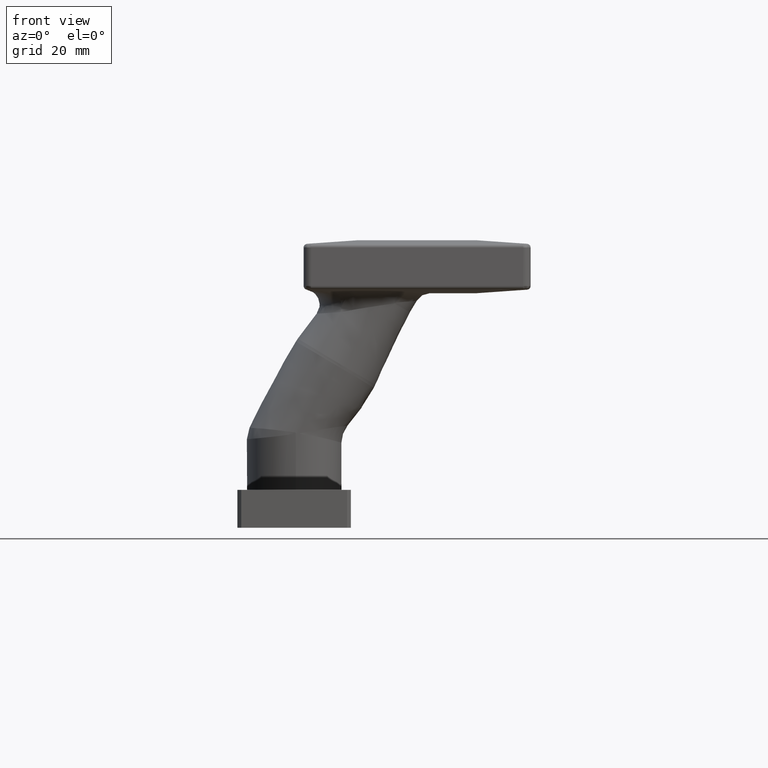
[diagram: clean part render]
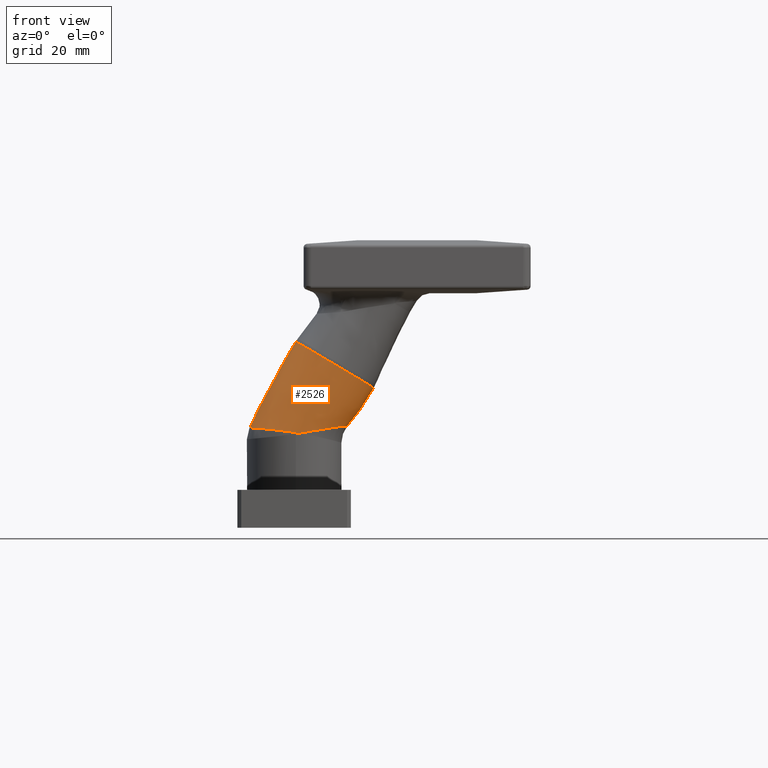
[diagram: same view with one face highlighted and labeled with its STEP entity id]
A machine part, front view. The second image highlights one B-rep face of the part: STEP entity #2526.
In plain terms, the highlighted face is a freeform B-spline surface patch.
Its self-contained STEP definition (entity closure, byte-faithful):
#180 = EDGE_CURVE ( 'NONE', #11349, #11349, #11354, .T. ) ;
#272 = CARTESIAN_POINT ( 'NONE',  ( -4.861647588908223128, -9.215768028173247473, 27.39458938647369379 ) ) ;
#313 = ORIENTED_EDGE ( 'NONE', *, *, #8218, .T. ) ;
#328 = CARTESIAN_POINT ( 'NONE',  ( 13.75269116321221397, 3.810970771245210553, 17.22611016918796878 ) ) ;
#373 = CARTESIAN_POINT ( 'NONE',  ( 8.572130360346401190, 13.23850676468123133, 24.14628376063532400 ) ) ;
#411 = CARTESIAN_POINT ( 'NONE',  ( 17.62565339814944920, 2.189836850330570517, 21.19337489879431047 ) ) ;
#423 = CARTESIAN_POINT ( 'NONE',  ( 21.30566923620517272, 0.1577045493643368379, 27.37173154725318014 ) ) ;
#461 = CARTESIAN_POINT ( 'NONE',  ( 20.97584422457134679, -3.055197323288384670, 27.56756514791076640 ) ) ;
#531 = CARTESIAN_POINT ( 'NONE',  ( 18.00574736911522677, 8.914883899047453042, 26.52104832478807239 ) ) ;
#558 = CARTESIAN_POINT ( 'NONE',  ( 0.8911359943185943600, 12.47017638708890708, 14.99999999999999822 ) ) ;
#654 = CARTESIAN_POINT ( 'NONE',  ( 18.02889343541739109, -8.554715425323612621, 28.86721385142937635 ) ) ;
#741 = CARTESIAN_POINT ( 'NONE',  ( 21.06086871645836212, -0.4890463641860524624, 26.98489491726817491 ) ) ;
#783 = FACE_OUTER_BOUND ( 'NONE', #2072, .T. ) ;
#787 = CARTESIAN_POINT ( 'NONE',  ( 17.27254015380343333, -9.343574820812253989, 29.32209938080705314 ) ) ;
#792 = CARTESIAN_POINT ( 'NONE',  ( 14.11385084242333399, 0.5870988515681928588, 16.94240429544219495 ) ) ;
#809 = CARTESIAN_POINT ( 'NONE',  ( 7.192077510165161058, 11.28740946938663825, 35.26807075544434156 ) ) ;
#822 = CARTESIAN_POINT ( 'NONE',  ( -7.760055948535018899, -9.326501240571504425, 16.15065546961905696 ) ) ;
#841 = CARTESIAN_POINT ( 'NONE',  ( 4.688649872959973486, -9.722009089196474108, 36.75883269949446941 ) ) ;
#844 = CARTESIAN_POINT ( 'NONE',  ( 10.55929444642474024, 8.239462505077968402, 16.51372794188327475 ) ) ;
#855 = CARTESIAN_POINT ( 'NONE',  ( 5.385777749702908679, 10.26202726963524547, 36.35730146854365330 ) ) ;
#859 = EDGE_CURVE ( 'NONE', #7682, #11216, #12438, .T. ) ;
#866 = CARTESIAN_POINT ( 'NONE',  ( -7.001269544327291428, 9.904077931762760301, 16.12631591500801065 ) ) ;
#885 = CARTESIAN_POINT ( 'NONE',  ( 5.835370468600914684, -10.57067010496673021, 36.06886251809776667 ) ) ;
#889 = CARTESIAN_POINT ( 'NONE',  ( 12.58683200767639754, 5.665439925809026889, 16.77219149834147061 ) ) ;
#902 = CARTESIAN_POINT ( 'NONE',  ( 0.7133045359136335195, 2.816602971472510930, 39.06089102913785638 ) ) ;
#913 = CARTESIAN_POINT ( 'NONE',  ( -9.265246657869072422, 7.611109359318549927, 16.29800102813766216 ) ) ;
#933 = CARTESIAN_POINT ( 'NONE',  ( 11.57182120046621243, -7.014899514578111450, 16.66410058575990405 ) ) ;
#948 = CARTESIAN_POINT ( 'NONE',  ( 1.366642911044659403, 5.043787997094652198, 38.68367878508799862 ) ) ;
#984 = CARTESIAN_POINT ( 'NONE',  ( 1.425388852639432269, -12.41969692558407523, 15.00000000000000000 ) ) ;
#1008 = CARTESIAN_POINT ( 'NONE',  ( -3.667265365845369107, -11.83154933609809234, 15.71180069125423984 ) ) ;
#1019 = B_SPLINE_CURVE_WITH_KNOTS ( 'NONE', 3,
 ( #4980, #9185, #8995, #6884 ),
 .UNSPECIFIED., .F., .F.,
 ( 4, 4 ),
 ( 0.000000000000000000, 1.000000000000000000 ),
 .UNSPECIFIED. ) ;
#1362 = CARTESIAN_POINT ( 'NONE',  ( 0.5849009312045936326, -6.448878678308452628, 39.67468772834727275 ) ) ;
#1389 = CARTESIAN_POINT ( 'NONE',  ( 0.7742499936232908331, -12.48253463515511541, 15.00000000000000178 ) ) ;
#1404 = CARTESIAN_POINT ( 'NONE',  ( 11.44051465776146514, 5.036330446420786089, 15.00000000000000000 ) ) ;
#1449 = CARTESIAN_POINT ( 'NONE',  ( -11.79395460171322618, 2.316301207380824234, 19.86778255245285507 ) ) ;
#1503 = CARTESIAN_POINT ( 'NONE',  ( 13.29835833785622512, -11.00929554621865414, 22.06567846908929909 ) ) ;
#1516 = CARTESIAN_POINT ( 'NONE',  ( 20.08551445353427312, 1.638264176143124695, 25.53057922623512965 ) ) ;
#1548 = CARTESIAN_POINT ( 'NONE',  ( -3.213294122388510754, 10.73064414391082444, 27.49751097260446286 ) ) ;
#1563 = CARTESIAN_POINT ( 'NONE',  ( 17.49522959009413725, 2.858973152982252408, 21.25079076330078820 ) ) ;
#1598 = CARTESIAN_POINT ( 'NONE',  ( 17.03340872753141966, 4.463611149502693998, 21.43178780182396892 ) ) ;
#1632 = CARTESIAN_POINT ( 'NONE',  ( 0.7165784863033796137, 12.48163866957477630, 14.99999999999999645 ) ) ;
#1686 = CARTESIAN_POINT ( 'NONE',  ( 21.01095819843662937, -1.274038318740390308, 27.01224782117997947 ) ) ;
#1726 = B_SPLINE_CURVE_WITH_KNOTS ( 'NONE', 3,
 ( #4051, #2023, #8392, #5245, #3149, #11408, #10532, #12662, #13654, #9489, #13607, #7285, #11500, #13551, #8303, #8430, #866, #6324, #3102, #11583, #913, #10497, #8353, #6227, #5115, #3063, #12488, #9314, #6181, #5210, #12575, #4187, #1923, #10359, #9359, #4231, #2061, #822, #11536, #5287, #11456, #6366, #7192, #1008, #4092, #3017, #12625, #2966, #4139, #13684, #10404, #5168, #7374, #7554 ),
 .UNSPECIFIED., .F., .F.,
 ( 4, 2, 2, 2, 2, 2, 2, 2, 2, 2, 2, 2, 2, 2, 2, 2, 2, 2, 2, 2, 2, 2, 2, 2, 2, 2, 4 ),
 ( 0.000000000000000000, 0.0003059239240236110357, 0.0006118478480472220715, 0.001223695696094443276, 0.002447391392188887418, 0.003671087088283330260, 0.004894782784377773102, 0.007342174176566656184, 0.008565869872661099893, 0.009789565568755542735, 0.01223695696094442495, 0.01468434835313330543, 0.01713173974532218938, 0.01957913113751107159, 0.02202652252969995381, 0.02447391392188883949, 0.02692130531407772170, 0.02814500101017216108, 0.02936869670626660392, 0.03181608809845547919, 0.03303978379454991510, 0.03426347949064435794, 0.03671087088283322974, 0.03793456657892766565, 0.03854641442697488707, 0.03885233835099850125, 0.03915826227502210849 ),
 .UNSPECIFIED. ) ;
#1733 = CARTESIAN_POINT ( 'NONE',  ( 16.45691399956350409, -10.03643122098850782, 29.80319354954185940 ) ) ;
#1832 = CARTESIAN_POINT ( 'NONE',  ( 4.558500466104606019, 9.579472488227125382, 36.85349937302011369 ) ) ;
#1848 = VERTEX_POINT ( 'NONE', #13191 ) ;
#1862 = CARTESIAN_POINT ( 'NONE',  ( 20.65710217272049576, 3.400538394858464653, 27.20349177090244908 ) ) ;
#1865 = CARTESIAN_POINT ( 'NONE',  ( 5.358471900771933250, -11.47201462073465095, 15.70663483745219224 ) ) ;
#1876 = CARTESIAN_POINT ( 'NONE',  ( 12.85729564123674251, 11.76535233699378580, 31.91444924710242503 ) ) ;
#1902 = CARTESIAN_POINT ( 'NONE',  ( 7.697122461854775999, -11.46774175473777113, 34.96240227996625549 ) ) ;
#1905 = CARTESIAN_POINT ( 'NONE',  ( 3.022726152285090784, -12.16922487241585493, 15.31651084561261023 ) ) ;
#1914 = CARTESIAN_POINT ( 'NONE',  ( 1.000042194404276330, 3.949773504242831024, 38.89208498122581403 ) ) ;
#1923 = CARTESIAN_POINT ( 'NONE',  ( -10.24550959434349551, -6.157709071875216544, 16.34047140414060095 ) ) ;
#1948 = CARTESIAN_POINT ( 'NONE',  ( 12.30717977744754599, -6.029959888127936374, 16.76085405834727737 ) ) ;
#1964 = CARTESIAN_POINT ( 'NONE',  ( 2.426200150160930491, 7.067282244977698191, 38.09314658925206487 ) ) ;
#2011 = CARTESIAN_POINT ( 'NONE',  ( 16.29000846305358863, 10.14340301165544211, 29.87403481433514685 ) ) ;
#2023 = CARTESIAN_POINT ( 'NONE',  ( 0.3217164403740780942, 12.49282580579611235, 15.17776186502671543 ) ) ;
#2041 = CARTESIAN_POINT ( 'NONE',  ( 12.72789832680872202, -5.334347894442927007, 16.81136374722618143 ) ) ;
#2061 = CARTESIAN_POINT ( 'NONE',  ( -8.594335646057697176, -8.451263285410444581, 16.22143786786687158 ) ) ;
#2072 = EDGE_LOOP ( 'NONE', ( #11771 ) ) ;
#2405 = CARTESIAN_POINT ( 'NONE',  ( 13.11243725123533643, -3.723818737494336784, 15.00000000000000000 ) ) ;
#2457 = CARTESIAN_POINT ( 'NONE',  ( 20.18705934235146771, -0.3422450821606061178, 25.48849425743658159 ) ) ;
#2506 = CARTESIAN_POINT ( 'NONE',  ( 14.61977201540200255, -4.653069682173216037, 17.17037261431810791 ) ) ;
#2526 = ADVANCED_FACE ( 'NONE', ( #783, #4128 ), #12590, .T. ) ;
#2549 = CARTESIAN_POINT ( 'NONE',  ( -14.22014102607380615, 1.277861314443007990, 15.00000000000000000 ) ) ;
#2560 = CARTESIAN_POINT ( 'NONE',  ( 12.83826497349632945, 5.982135098357918679, 17.31180389782100093 ) ) ;
#2590 = CARTESIAN_POINT ( 'NONE',  ( 5.141061462732254839, -11.90303946203330376, 36.96946741275272785 ) ) ;
#2657 = CARTESIAN_POINT ( 'NONE',  ( 0.01502296227024976262, 13.66421575241133546, 15.00000000000000000 ) ) ;
#2693 = CARTESIAN_POINT ( 'NONE',  ( 0.5415832341735139499, 12.48884232441322517, 15.00000000000058265 ) ) ;
#2744 = CARTESIAN_POINT ( 'NONE',  ( 17.39331168122273397, 9.214959917960307223, 29.22441576977719890 ) ) ;
#2792 = CARTESIAN_POINT ( 'NONE',  ( 17.78280765292776877, -8.829242240460130731, 29.01636682707133019 ) ) ;
#2891 = CARTESIAN_POINT ( 'NONE',  ( 20.04733055255613650, 5.215809211980965365, 27.58885846883249471 ) ) ;
#2894 = CARTESIAN_POINT ( 'NONE',  ( 1.262970517230964207, 12.43793362243144074, 15.05907035263116711 ) ) ;
#2907 = CARTESIAN_POINT ( 'NONE',  ( 11.19627394706859747, 12.00051368694155585, 32.92140036091969080 ) ) ;
#2918 = VERTEX_POINT ( 'NONE', #5588 ) ;
#2934 = CARTESIAN_POINT ( 'NONE',  ( 12.72172884172835872, -11.79814440171863765, 32.00122203746039418 ) ) ;
#2938 = CARTESIAN_POINT ( 'NONE',  ( 2.424979838420118217, -12.28163832347742002, 15.21032751951582540 ) ) ;
#2966 = CARTESIAN_POINT ( 'NONE',  ( -0.7259197069209089026, -12.45878752191295646, 15.31150959122973809 ) ) ;
#2992 = CARTESIAN_POINT ( 'NONE',  ( 2.528870566857754909, -7.228748217037280988, 38.02797349074460698 ) ) ;
#2995 = CARTESIAN_POINT ( 'NONE',  ( 4.204991347687650816, -11.86579700815689264, 15.51705592700480985 ) ) ;
#3007 = CARTESIAN_POINT ( 'NONE',  ( 12.19933570521591193, 11.89714605565564476, 32.31436126553225563 ) ) ;
#3017 = CARTESIAN_POINT ( 'NONE',  ( -1.722942503314718987, -12.33464251176754445, 15.45299931105459734 ) ) ;
#3022 = CARTESIAN_POINT ( 'NONE',  ( 0.4628888708257798967, 12.49066065314260499, 15.11323861511340638 ) ) ;
#3036 = CARTESIAN_POINT ( 'NONE',  ( 13.60437422541829022, 3.414373441549006127, 16.88261556675736941 ) ) ;
#3051 = CARTESIAN_POINT ( 'NONE',  ( 0.6073897186154396666, -2.254615506074624243, 39.11817533846387818 ) ) ;
#3063 = CARTESIAN_POINT ( 'NONE',  ( -11.71264873976365628, 1.681398514680182199, 16.43347562760983038 ) ) ;
#3080 = CARTESIAN_POINT ( 'NONE',  ( 13.78079031616732664, -2.668784481497560979, 16.92229881294988658 ) ) ;
#3102 = CARTESIAN_POINT ( 'NONE',  ( -7.914506866328545165, 9.105401409285470038, 16.20366877459126087 ) ) ;
#3107 = CARTESIAN_POINT ( 'NONE',  ( 0.4235304700486768881, 12.49030518299969827, 15.17056411022498708 ) ) ;
#3149 = CARTESIAN_POINT ( 'NONE',  ( -0.08026832433964131708, 12.49028868937751646, 15.24445156593847628 ) ) ;
#3505 = CARTESIAN_POINT ( 'NONE',  ( 17.30607035245568426, -6.309135293302730041, 21.03830459812851217 ) ) ;
#3597 = CARTESIAN_POINT ( 'NONE',  ( 19.54770223309594712, -8.488429147853686629, 28.41552445534928140 ) ) ;
#3611 = CARTESIAN_POINT ( 'NONE',  ( 19.75505151178758112, 8.197081354544389242, 28.29241082112611849 ) ) ;
#3641 = CARTESIAN_POINT ( 'NONE',  ( 14.16247968890031927, 2.185049141711799869, 17.19030899223330877 ) ) ;
#3656 = CARTESIAN_POINT ( 'NONE',  ( 12.33408136193803806, 6.828792217095751127, 17.36044873953291656 ) ) ;
#3695 = CARTESIAN_POINT ( 'NONE',  ( 17.72827186766386021, 1.521338932216218076, 21.14405680603314153 ) ) ;
#3710 = CARTESIAN_POINT ( 'NONE',  ( 11.44051465776146514, 5.036330446420786089, 15.00000000000000000 ) ) ;
#3758 = CARTESIAN_POINT ( 'NONE',  ( 20.16045823361689671, 0.6494646237386794141, 25.49769324333970388 ) ) ;
#3836 = CARTESIAN_POINT ( 'NONE',  ( 18.81553224091939924, 7.550167745414809062, 28.36570380467029295 ) ) ;
#3887 = CARTESIAN_POINT ( 'NONE',  ( 16.29000846305358863, 10.14340301165544211, 29.87403481433514685 ) ) ;
#3923 = CARTESIAN_POINT ( 'NONE',  ( 19.89865954991608987, 5.566316234916983241, 27.68368327888605762 ) ) ;
#3974 = CARTESIAN_POINT ( 'NONE',  ( 19.39043987479820075, 6.588061096227268543, 28.00585863036879886 ) ) ;
#3979 = CARTESIAN_POINT ( 'NONE',  ( 1.065145046017432540, 12.45480823540932214, 15.00000000000000000 ) ) ;
#4022 = CARTESIAN_POINT ( 'NONE',  ( 16.17189233049945329, -10.24658574646730891, 29.96973805473648866 ) ) ;
#4026 = CARTESIAN_POINT ( 'NONE',  ( 9.333030531088065018, 9.309940005341506009, 16.34489038564719365 ) ) ;
#4051 = CARTESIAN_POINT ( 'NONE',  ( 0.4235304700486768881, 12.49030518299969827, 15.17056411022498708 ) ) ;
#4068 = CARTESIAN_POINT ( 'NONE',  ( 4.157552129895581317, -9.237326029025773266, 37.07777104532334533 ) ) ;
#4071 = CARTESIAN_POINT ( 'NONE',  ( 4.594221785667067515, -11.74397464945888991, 15.58189356912756907 ) ) ;
#4092 = CARTESIAN_POINT ( 'NONE',  ( -2.908228696639014732, -12.08115950287648488, 15.61572512018270942 ) ) ;
#4111 = CARTESIAN_POINT ( 'NONE',  ( 8.664498501119735963, 9.796750630904490720, 16.24974533732154924 ) ) ;
#4125 = CARTESIAN_POINT ( 'NONE',  ( 0.5509124376336413942, -1.868561880454528978, 39.15434667308368688 ) ) ;
#4128 = FACE_OUTER_BOUND ( 'NONE', #8423, .T. ) ;
#4139 = CARTESIAN_POINT ( 'NONE',  ( -0.5255856473605849954, -12.47364568115339445, 15.28334524799793925 ) ) ;
#4164 = CARTESIAN_POINT ( 'NONE',  ( 13.97640485124976450, 1.822518151901720174, 16.92406808116584571 ) ) ;
#4187 = CARTESIAN_POINT ( 'NONE',  ( -10.61411484039383168, -5.440215046181053893, 16.36090925713664745 ) ) ;
#4231 = CARTESIAN_POINT ( 'NONE',  ( -8.860878301296075676, -8.143216470857442602, 16.24278865663269755 ) ) ;
#4579 = CARTESIAN_POINT ( 'NONE',  ( -1.277861314443011542, -14.22014102607380792, 15.00000000000000000 ) ) ;
#4620 = CARTESIAN_POINT ( 'NONE',  ( 14.75245723495437211, -11.75016148225459034, 28.19412826856855858 ) ) ;
#4669 = CARTESIAN_POINT ( 'NONE',  ( -1.076379068130093764, -7.292821942621340092, 35.92907127236919251 ) ) ;
#4683 = CARTESIAN_POINT ( 'NONE',  ( 21.30155450817410667, -0.1734098784748269728, 27.37417466702162372 ) ) ;
#4718 = CARTESIAN_POINT ( 'NONE',  ( 17.56044149412179678, 2.524405001656411685, 21.22208283104755111 ) ) ;
#4729 = CARTESIAN_POINT ( 'NONE',  ( 8.952384199136087517, 11.59773801365081347, 17.69034776612422988 ) ) ;
#4755 = CARTESIAN_POINT ( 'NONE',  ( 1.065145046017432540, 12.45480823540932214, 15.00000000000000000 ) ) ;
#4772 = CARTESIAN_POINT ( 'NONE',  ( 10.48428740744931531, 6.834208714589097511, 15.00000000000000000 ) ) ;
#4898 = CARTESIAN_POINT ( 'NONE',  ( 20.79405691108901877, -2.831724569634490596, 27.13422283271177093 ) ) ;
#4939 = CARTESIAN_POINT ( 'NONE',  ( 15.27642561552774048, -10.81443275623829336, 30.49159089622647301 ) ) ;
#4980 = CARTESIAN_POINT ( 'NONE',  ( 0.2849833287464162423, -12.49264548109530892, 15.21350726076668636 ) ) ;
#4997 = CARTESIAN_POINT ( 'NONE',  ( 21.02306599511932106, 1.074572950062981258, 26.99577534333411677 ) ) ;
#5052 = CARTESIAN_POINT ( 'NONE',  ( 2.069741725346645467, 12.34144384523552951, 15.21175991173509701 ) ) ;
#5066 = CARTESIAN_POINT ( 'NONE',  ( 2.846204456068282873, 7.685954237354964746, 37.85515697786182443 ) ) ;
#5091 = CARTESIAN_POINT ( 'NONE',  ( 6.435100655757173271, -10.92258006611436905, 35.70802051798180798 ) ) ;
#5094 = CARTESIAN_POINT ( 'NONE',  ( 4.255520867315712330, 11.88116428087677967, 15.57355949626305858 ) ) ;
#5115 = CARTESIAN_POINT ( 'NONE',  ( -11.39317637449729226, 3.263289944268101817, 16.41378854170359602 ) ) ;
#5137 = CARTESIAN_POINT ( 'NONE',  ( 1.953879435330086567, -6.259796618726054973, 38.35267828442997740 ) ) ;
#5142 = CARTESIAN_POINT ( 'NONE',  ( 10.75863656144082725, -7.940229365238896442, 16.55078796437945599 ) ) ;
#5155 = CARTESIAN_POINT ( 'NONE',  ( 0.4711458601086741527, -1.086506212349811928, 39.20855210557056836 ) ) ;
#5168 = CARTESIAN_POINT ( 'NONE',  ( 0.07998225966711307311, -12.49385583205365258, 15.21647554841455552 ) ) ;
#5186 = CARTESIAN_POINT ( 'NONE',  ( 5.031357331127366272, 11.63180990683129679, 15.69769645593194873 ) ) ;
#5199 = CARTESIAN_POINT ( 'NONE',  ( 9.162429969906019878, 11.88355806244883439, 34.10749423160948623 ) ) ;
#5210 = CARTESIAN_POINT ( 'NONE',  ( -11.43733599240894883, -3.150338746824532521, 16.41653324255009849 ) ) ;
#5216 = CARTESIAN_POINT ( 'NONE',  ( 0.5022491565705831107, 12.49036463450502588, 15.05639001751628747 ) ) ;
#5228 = CARTESIAN_POINT ( 'NONE',  ( 2.673008547499436283, 12.24480237251113124, 15.31425382601022278 ) ) ;
#5245 = CARTESIAN_POINT ( 'NONE',  ( 0.01979391532951144811, 12.49243803186328172, 15.22681577750779880 ) ) ;
#5287 = CARTESIAN_POINT ( 'NONE',  ( -6.166064883189688040, -10.54960061911836178, 15.99416041070192485 ) ) ;
#5588 = CARTESIAN_POINT ( 'NONE',  ( 1.425388852639432269, -12.41969692558407523, 15.00000000000000000 ) ) ;
#5611 = VERTEX_POINT ( 'NONE', #6726 ) ;
#5640 = CARTESIAN_POINT ( 'NONE',  ( 3.090739208900059598, 13.51120142303734895, 18.28748632571762300 ) ) ;
#5694 = CARTESIAN_POINT ( 'NONE',  ( 11.82921238707280942, 4.083857506220506473, 15.00000000000000000 ) ) ;
#5734 = CARTESIAN_POINT ( 'NONE',  ( 17.80123638578017164, 0.5242892728067223285, 21.09377061425920985 ) ) ;
#5748 = CARTESIAN_POINT ( 'NONE',  ( 19.93003729075663344, 2.597159428233290601, 25.60302178686560737 ) ) ;
#5779 = CARTESIAN_POINT ( 'NONE',  ( 15.68884729114127730, 11.92218096499315294, 30.70671957713486577 ) ) ;
#5834 = CARTESIAN_POINT ( 'NONE',  ( 13.64022508829914315, 4.133458770120263637, 17.23642877914935312 ) ) ;
#5848 = CARTESIAN_POINT ( 'NONE',  ( 9.907478460048325886, 7.647205480839566860, 15.00000000000000000 ) ) ;
#5924 = CARTESIAN_POINT ( 'NONE',  ( 19.57005914332719598, 6.253025264686049134, 27.89229717979494794 ) ) ;
#5970 = CARTESIAN_POINT ( 'NONE',  ( 18.72260455974503657, -7.698321935281985162, 28.44183416858051316 ) ) ;
#6003 = CARTESIAN_POINT ( 'NONE',  ( 0.5415832341735139499, 12.48884232441322517, 15.00000000000058265 ) ) ;
#6008 = B_SPLINE_CURVE_WITH_KNOTS ( 'NONE', 3,
 ( #984, #9376, #8281, #11476, #2938, #1905, #10379, #2995, #4071, #1865, #7213, #10339, #11432, #12596, #7168, #12411, #5142, #12506, #933, #1948, #2041, #6206, #12464, #6293, #3080, #8406, #12551, #792, #13667, #4164, #8238, #3036, #13578, #889, #10431, #9292, #844, #4026, #4111, #7355, #11382, #5186, #5094, #11514, #5228, #5052, #10296, #6246, #6157, #2894, #10472, #3979 ),
 .UNSPECIFIED., .F., .F.,
 ( 4, 2, 2, 2, 2, 2, 2, 2, 2, 2, 2, 2, 2, 2, 2, 2, 2, 2, 2, 2, 2, 2, 2, 2, 2, 4 ),
 ( -5.999999998903975888E-08, 0.0006173217718151980098, 0.001234703543630384388, 0.002469467087260755842, 0.003704230630891127730, 0.004938994174521499185, 0.007408521261782243829, 0.009878048349042991075, 0.01111281189267336253, 0.01234757543630373572, 0.01481710252356448557, 0.01605186606719485876, 0.01728662961082523195, 0.01975615669808598179, 0.02099092024171635498, 0.02222568378534672817, 0.02469521087260747455, 0.02716473795986822440, 0.02963426504712897425, 0.03210379213438972062, 0.03457331922165046700, 0.03704284630891122032, 0.03827760985254159004, 0.03889499162435677837, 0.03920368251026436907, 0.03951237339617195976 ),
 .UNSPECIFIED. ) ;
#6018 = CARTESIAN_POINT ( 'NONE',  ( 18.38103195454745986, 8.141959093548997828, 28.63276862054548744 ) ) ;
#6066 = CARTESIAN_POINT ( 'NONE',  ( 17.65087315105107990, 8.955381115330649067, 29.07121430041988219 ) ) ;
#6104 = CARTESIAN_POINT ( 'NONE',  ( 20.13914470401036283, -5.045811439072897642, 27.54063032428567581 ) ) ;
#6120 = CARTESIAN_POINT ( 'NONE',  ( 0.6398647108814388140, 2.429095659917021699, 39.10621104440562590 ) ) ;
#6139 = VERTEX_POINT ( 'NONE', #9616 ) ;
#6153 = CARTESIAN_POINT ( 'NONE',  ( 9.696037783233157015, -11.96354751363279334, 33.80479555227176292 ) ) ;
#6157 = CARTESIAN_POINT ( 'NONE',  ( 1.464088159285413360, 12.41758173332320325, 15.10216828393019739 ) ) ;
#6171 = CARTESIAN_POINT ( 'NONE',  ( 7.843536950723685841, 11.53944027035956665, 34.88010176793494566 ) ) ;
#6181 = CARTESIAN_POINT ( 'NONE',  ( -11.73443575203364198, -1.565196610914409092, 16.43794129320785657 ) ) ;
#6203 = CARTESIAN_POINT ( 'NONE',  ( 1.615667961207454262, -5.578147558916029425, 38.54167561691417632 ) ) ;
#6206 = CARTESIAN_POINT ( 'NONE',  ( 13.24678063924588933, -4.228305172649357679, 16.86900749459755033 ) ) ;
#6217 = CARTESIAN_POINT ( 'NONE',  ( 5.966556992949856308, 10.64889279731794502, 36.00509270439367526 ) ) ;
#6227 = CARTESIAN_POINT ( 'NONE',  ( -11.15406536593488340, 4.048229165682733388, 16.40055894050248142 ) ) ;
#6246 = CARTESIAN_POINT ( 'NONE',  ( 1.564998025864035469, 12.40638662502128575, 15.12132352836738036 ) ) ;
#6293 = CARTESIAN_POINT ( 'NONE',  ( 13.66853215020173096, -3.068108269586593551, 16.91190764902266963 ) ) ;
#6324 = CARTESIAN_POINT ( 'NONE',  ( -7.619644024435984875, 9.380555941462651148, 16.18002837034177332 ) ) ;
#6366 = CARTESIAN_POINT ( 'NONE',  ( -5.120866610862981005, -11.16640378035266323, 15.88133526386623018 ) ) ;
#6716 = CARTESIAN_POINT ( 'NONE',  ( -11.35052220728457861, 8.660888289449129473, 15.00000000000000000 ) ) ;
#6726 = CARTESIAN_POINT ( 'NONE',  ( 0.4235304700486768881, 12.49030518299969827, 15.17056411022498708 ) ) ;
#6759 = CARTESIAN_POINT ( 'NONE',  ( 21.15286242819891172, -2.120646103445471109, 27.46246058950690028 ) ) ;
#6806 = CARTESIAN_POINT ( 'NONE',  ( 4.034427452716456308, -12.39537017591437085, 33.44576066983629659 ) ) ;
#6821 = CARTESIAN_POINT ( 'NONE',  ( 20.14342728621055301, 0.9816324896828112490, 25.50475166743720834 ) ) ;
#6830 = CARTESIAN_POINT ( 'NONE',  ( 16.29000846305358863, 10.14340301165544211, 29.87403481433514685 ) ) ;
#6848 = CARTESIAN_POINT ( 'NONE',  ( 18.86397047243561076, -7.823711431694698071, 26.16536038277406817 ) ) ;
#6863 = CARTESIAN_POINT ( 'NONE',  ( 11.00055369948115036, 5.966236345839974753, 15.00000000000000000 ) ) ;
#6884 = CARTESIAN_POINT ( 'NONE',  ( 0.4492440536689440989, -12.49296174146934035, 15.00000000000000000 ) ) ;
#6902 = CARTESIAN_POINT ( 'NONE',  ( 14.01991361010034076, 10.55041516224813236, 22.48495404871142611 ) ) ;
#6907 = EDGE_CURVE ( 'NONE', #5611, #6139, #1726, .T. ) ;
#7163 = CARTESIAN_POINT ( 'NONE',  ( 19.12913647243598092, -7.081961720688926931, 28.18550656784178443 ) ) ;
#7168 = CARTESIAN_POINT ( 'NONE',  ( 9.575725020345371874, -9.053714802557490060, 16.37590421248624040 ) ) ;
#7182 = CARTESIAN_POINT ( 'NONE',  ( 4.289728933531511856, 9.334099494337053216, 37.01373641339021248 ) ) ;
#7192 = CARTESIAN_POINT ( 'NONE',  ( -4.762898562022040316, -11.34665348095010273, 15.84080001450313624 ) ) ;
#7210 = CARTESIAN_POINT ( 'NONE',  ( 0.8267838019439711639, -3.398137438702033997, 38.98488138573925710 ) ) ;
#7213 = CARTESIAN_POINT ( 'NONE',  ( 5.734520456768451346, -11.32162586769981338, 15.76652238308416010 ) ) ;
#7225 = CARTESIAN_POINT ( 'NONE',  ( 1.673801816226283767, 5.742391440808412462, 38.51376223547847388 ) ) ;
#7252 = CARTESIAN_POINT ( 'NONE',  ( 8.353087739223926889, -11.67742412449628020, 34.58002440260261778 ) ) ;
#7285 = CARTESIAN_POINT ( 'NONE',  ( -3.495115371532646620, 11.84722068806643769, 15.76366524469951003 ) ) ;
#7355 = CARTESIAN_POINT ( 'NONE',  ( 7.271784367385158099, 10.64586718735563409, 16.04451008487158248 ) ) ;
#7374 = CARTESIAN_POINT ( 'NONE',  ( 0.1816819516646135946, -12.49406969296634706, 15.20909250457318329 ) ) ;
#7554 = CARTESIAN_POINT ( 'NONE',  ( 0.2849833287464162423, -12.49264548109530892, 15.21350726076668636 ) ) ;
#7682 = VERTEX_POINT ( 'NONE', #13437 ) ;
#7728 = CARTESIAN_POINT ( 'NONE',  ( 15.39063267787042477, -12.07531298867185932, 30.88378450376443496 ) ) ;
#7763 = EDGE_CURVE ( 'NONE', #2918, #7682, #6008, .T. ) ;
#7770 = CARTESIAN_POINT ( 'NONE',  ( 21.29743978014304062, -0.5045243063139908113, 27.37661778679006730 ) ) ;
#7819 = CARTESIAN_POINT ( 'NONE',  ( 5.439276076003107363, 12.09445449163169783, 36.79240248612315867 ) ) ;
#7869 = CARTESIAN_POINT ( 'NONE',  ( 0.7494900524471926895, 6.795698435258110237, 39.57696293760947981 ) ) ;
#7913 = CARTESIAN_POINT ( 'NONE',  ( 13.94953555706932846, 3.162800933747472065, 17.20838356461216989 ) ) ;
#7976 = CARTESIAN_POINT ( 'NONE',  ( 21.04758870764313627, 2.718120690341253809, 27.52496686108688451 ) ) ;
#8038 = CARTESIAN_POINT ( 'NONE',  ( 1.425388852639432269, -12.41969692558407523, 15.00000000000000000 ) ) ;
#8067 = CARTESIAN_POINT ( 'NONE',  ( 0.5415832341735139499, 12.48884232441322517, 15.00000000000058265 ) ) ;
#8218 = EDGE_CURVE ( 'NONE', #11216, #5611, #10049, .T. ) ;
#8236 = CARTESIAN_POINT ( 'NONE',  ( 15.58249343616939342, -10.63517213964419206, 30.31343401432068418 ) ) ;
#8238 = CARTESIAN_POINT ( 'NONE',  ( 13.89967545461909992, 2.225317799978468347, 16.91518065619742117 ) ) ;
#8248 = CARTESIAN_POINT ( 'NONE',  ( 0.4270022596855164720, 0.4884748493799345725, 39.24730657071096118 ) ) ;
#8276 = CARTESIAN_POINT ( 'NONE',  ( 3.183265522785511337, -8.133617225800399808, 37.65107053382519808 ) ) ;
#8281 = CARTESIAN_POINT ( 'NONE',  ( 1.824783066973707957, -12.37416648467734070, 15.09636115862813099 ) ) ;
#8292 = CARTESIAN_POINT ( 'NONE',  ( 2.226990676466550578, 6.743198362290249825, 38.20487062751434593 ) ) ;
#8303 = CARTESIAN_POINT ( 'NONE',  ( -5.685368921362531580, 10.83881624360523155, 15.99812203606289174 ) ) ;
#8323 = CARTESIAN_POINT ( 'NONE',  ( 7.376357201446118950, -11.34474044196558573, 35.15084963504037319 ) ) ;
#8342 = CARTESIAN_POINT ( 'NONE',  ( 15.10561245928989393, 10.92303319903236591, 30.56790294036321853 ) ) ;
#8353 = CARTESIAN_POINT ( 'NONE',  ( -10.53760257139127354, 5.540147959983027448, 16.36814045233445825 ) ) ;
#8382 = CARTESIAN_POINT ( 'NONE',  ( 15.71297179106676367, 10.56817718909434589, 30.21242681560968890 ) ) ;
#8392 = CARTESIAN_POINT ( 'NONE',  ( 0.2208490460500046326, 12.49370134433407209, 15.19407391920187145 ) ) ;
#8406 = CARTESIAN_POINT ( 'NONE',  ( 14.04581577578408513, -1.467731245399816364, 16.94505107998925197 ) ) ;
#8423 = EDGE_LOOP ( 'NONE', ( #10743, #11934, #9806, #313, #9284, #12048 ) ) ;
#8430 = CARTESIAN_POINT ( 'NONE',  ( -6.678223861096949321, 10.15173639386868132, 16.09622847647165500 ) ) ;
#8772 = CARTESIAN_POINT ( 'NONE',  ( -7.295311605190376802, -10.58321874762134840, 19.45503815399738201 ) ) ;
#8865 = CARTESIAN_POINT ( 'NONE',  ( -8.660888289449131250, -11.35052220728457328, 15.00000000000000000 ) ) ;
#8886 = CARTESIAN_POINT ( 'NONE',  ( 0.4492440536689440989, -12.49296174146934035, 15.00000000000000000 ) ) ;
#8907 = CARTESIAN_POINT ( 'NONE',  ( 20.00584906534268370, -2.264623520813874968, 25.58466383197155025 ) ) ;
#8920 = CARTESIAN_POINT ( 'NONE',  ( 21.29070641680655740, 0.8140927661773704749, 27.38061572127110566 ) ) ;
#8953 = CARTESIAN_POINT ( 'NONE',  ( 14.29504217072903138, 1.205884797340878167, 17.18053324278316651 ) ) ;
#8966 = CARTESIAN_POINT ( 'NONE',  ( 17.33945406522144594, 3.516159591195427314, 21.31522425310902946 ) ) ;
#8995 = CARTESIAN_POINT ( 'NONE',  ( 0.3943916209000932205, -12.49460102191497768, 15.07073044837261655 ) ) ;
#9018 = CARTESIAN_POINT ( 'NONE',  ( 17.56044149412179678, 2.524405001656411685, 21.22208283104755111 ) ) ;
#9105 = CARTESIAN_POINT ( 'NONE',  ( 16.57852679904700466, 9.931015922935991114, 29.70483881369787227 ) ) ;
#9151 = CARTESIAN_POINT ( 'NONE',  ( 14.34260498753155844, -11.29569629626890759, 31.03705183340167295 ) ) ;
#9185 = CARTESIAN_POINT ( 'NONE',  ( 0.3396189332972787134, -12.49414918162547394, 15.14188624084624912 ) ) ;
#9252 = CARTESIAN_POINT ( 'NONE',  ( 3.778182480916945973, 8.819403221028386142, 37.31590728815153568 ) ) ;
#9284 = ORIENTED_EDGE ( 'NONE', *, *, #6907, .T. ) ;
#9288 = CARTESIAN_POINT ( 'NONE',  ( 13.70324462512671992, -11.54090857817388383, 31.41369592982567482 ) ) ;
#9292 = CARTESIAN_POINT ( 'NONE',  ( 11.12241724611068783, 7.653509762779752812, 16.58828497880322317 ) ) ;
#9314 = CARTESIAN_POINT ( 'NONE',  ( -11.80808795760131957, -0.7498267519007382198, 16.44240538505239257 ) ) ;
#9332 = CARTESIAN_POINT ( 'NONE',  ( 2.136721015353629571, -6.589860543508348378, 38.25012350585659959 ) ) ;
#9345 = CARTESIAN_POINT ( 'NONE',  ( 11.86756241129824652, 11.94422330887643469, 32.51645011100144700 ) ) ;
#9359 = CARTESIAN_POINT ( 'NONE',  ( -9.361428916562545055, -7.504618297473508726, 16.28063794242219942 ) ) ;
#9376 = CARTESIAN_POINT ( 'NONE',  ( 1.622321443091113258, -12.39984107278958803, 15.05639082282311847 ) ) ;
#9489 = CARTESIAN_POINT ( 'NONE',  ( -2.341862987019151632, 12.19091101971337565, 15.61611793942875615 ) ) ;
#9616 = CARTESIAN_POINT ( 'NONE',  ( 0.2849833287464162423, -12.49264548109530892, 15.21350726076668636 ) ) ;
#9806 = ORIENTED_EDGE ( 'NONE', *, *, #859, .T. ) ;
#9837 = CARTESIAN_POINT ( 'NONE',  ( 1.512933855121319615, -13.51715816698906636, 25.41690568105843795 ) ) ;
#9919 = CARTESIAN_POINT ( 'NONE',  ( 2.800110784379187923, 11.67847162740349987, 33.95731944034236705 ) ) ;
#9963 = CARTESIAN_POINT ( 'NONE',  ( 11.57949597617708193, 4.720620858377596818, 15.00000000000000000 ) ) ;
#9978 = CARTESIAN_POINT ( 'NONE',  ( 21.20131066837118183, 1.778010430679151987, 27.43369444690461023 ) ) ;
#10008 = CARTESIAN_POINT ( 'NONE',  ( 12.33075960307549757, 2.142486572575333259, 15.00000000000000000 ) ) ;
#10049 = B_SPLINE_CURVE_WITH_KNOTS ( 'NONE', 3,
 ( #6003, #5216, #3022, #3107 ),
 .UNSPECIFIED., .F., .F.,
 ( 4, 4 ),
 ( 0.000000000000000000, 1.000000000000000000 ),
 .UNSPECIFIED. ) ;
#10070 = CARTESIAN_POINT ( 'NONE',  ( 16.65865443953156699, 5.370256103100462752, 21.56712510263882265 ) ) ;
#10194 = CARTESIAN_POINT ( 'NONE',  ( 11.72003627269785753, -11.96178481638922797, 32.60590096582016173 ) ) ;
#10241 = CARTESIAN_POINT ( 'NONE',  ( 16.85698310614310813, 9.702796230675552636, 29.54130908868558336 ) ) ;
#10296 = CARTESIAN_POINT ( 'NONE',  ( 1.867707469351572724, 12.36982382424580251, 15.17710515915933378 ) ) ;
#10339 = CARTESIAN_POINT ( 'NONE',  ( 6.843967889068959032, -10.82796518423687893, 15.94368204824141877 ) ) ;
#10359 = CARTESIAN_POINT ( 'NONE',  ( -9.594800375869235509, -7.175242218754339873, 16.29709733356028423 ) ) ;
#10373 = EDGE_CURVE ( 'NONE', #6139, #1848, #1019, .T. ) ;
#10376 = CARTESIAN_POINT ( 'NONE',  ( 10.37207422435693971, -12.01927524709033612, 33.41592428913198631 ) ) ;
#10379 = CARTESIAN_POINT ( 'NONE',  ( 3.418724280284779482, -12.07852197878852074, 15.38411166414731213 ) ) ;
#10404 = CARTESIAN_POINT ( 'NONE',  ( -0.1227462692266974575, -12.49051440256467949, 15.23437255035908677 ) ) ;
#10431 = CARTESIAN_POINT ( 'NONE',  ( 12.13632946962731651, 6.367989186404091839, 16.71752176387603228 ) ) ;
#10472 = CARTESIAN_POINT ( 'NONE',  ( 1.161817710486582333, 12.44715287731610864, 15.03683986252956473 ) ) ;
#10497 = CARTESIAN_POINT ( 'NONE',  ( -10.16025522166842876, 6.252957379523365056, 16.34895277247751721 ) ) ;
#10532 = CARTESIAN_POINT ( 'NONE',  ( -0.5781255704198364764, 12.46640173779069549, 15.33321293992521639 ) ) ;
#10671 = EDGE_CURVE ( 'NONE', #1848, #2918, #12538, .T. ) ;
#10743 = ORIENTED_EDGE ( 'NONE', *, *, #10671, .T. ) ;
#10868 = CARTESIAN_POINT ( 'NONE',  ( 17.79569054720856869, -0.4632811046907138186, 21.06657300198493843 ) ) ;
#10916 = CARTESIAN_POINT ( 'NONE',  ( -8.425724906169239858, 9.404829134407584945, 19.49203168228504879 ) ) ;
#10962 = CARTESIAN_POINT ( 'NONE',  ( -7.470123750014389330, 4.166958024860424992, 28.54290667660337988 ) ) ;
#11002 = CARTESIAN_POINT ( 'NONE',  ( 20.17748918102323330, 0.3172967577945474682, 25.49063481924219943 ) ) ;
#11048 = CARTESIAN_POINT ( 'NONE',  ( 21.30155450817410667, -0.1734098784748269728, 27.37417466702162372 ) ) ;
#11064 = CARTESIAN_POINT ( 'NONE',  ( 13.27897068476503151, 5.085595198173125553, 17.26990698290931903 ) ) ;
#11113 = CARTESIAN_POINT ( 'NONE',  ( 13.64022508829914315, 4.133458770120263637, 17.23642877914935312 ) ) ;
#11165 = CARTESIAN_POINT ( 'NONE',  ( 1.099901715077584718, -12.45826487618422185, 15.00000000000000178 ) ) ;
#11187 = CARTESIAN_POINT ( 'NONE',  ( 20.44861514311207884, 4.143317946040554922, 27.33393026855468833 ) ) ;
#11216 = VERTEX_POINT ( 'NONE', #8067 ) ;
#11236 = CARTESIAN_POINT ( 'NONE',  ( 17.00723971498150533, -9.584925409968752419, 29.47937774740458394 ) ) ;
#11287 = CARTESIAN_POINT ( 'NONE',  ( 21.04918423428869900, 0.6844515732739621106, 26.98441418330401831 ) ) ;
#11324 = CARTESIAN_POINT ( 'NONE',  ( 20.96851192520723117, -1.668945942753027767, 27.03510531817524054 ) ) ;
#11340 = CARTESIAN_POINT ( 'NONE',  ( 13.18346600944124347, 11.68063907689647429, 31.71659793528417026 ) ) ;
#11349 = VERTEX_POINT ( 'NONE', #6830 ) ;
#11354 = B_SPLINE_CURVE_WITH_KNOTS ( 'NONE', 3,
 ( #3887, #9105, #10241, #2744, #6066, #6018, #3836, #3974, #5924, #3923, #2891, #11187, #1862, #13478, #13296, #4997, #11287, #13434, #741, #1686, #11324, #4898, #12270, #6104, #12407, #7163, #5970, #654, #2792, #787, #11236, #1733, #4022, #8236, #4939, #9151, #9288, #2934, #11377, #10194, #12218, #10376, #6153, #13525, #7252, #1902, #8323, #5091, #885, #841, #4068, #12502, #8276, #11426, #2992, #9332, #5137, #6203, #13573, #12461, #7210, #3051, #4125, #5155, #11488, #8248, #12425, #6120, #902, #11525, #1914, #948, #7225, #8292, #1964, #5066, #12476, #12518, #9252, #7182, #1832, #855, #6217, #809, #6171, #5199, #13594, #13494, #2907, #9345, #3007, #1876, #11340, #13540, #12612, #8342, #8382, #2011 ),
 .UNSPECIFIED., .T., .F.,
 ( 4, 2, 2, 2, 2, 2, 2, 2, 2, 2, 2, 2, 2, 2, 2, 2, 2, 2, 2, 2, 2, 2, 2, 2, 2, 2, 2, 2, 2, 2, 2, 2, 2, 2, 2, 2, 2, 2, 2, 2, 2, 2, 2, 2, 2, 2, 2, 2, 4 ),
 ( 0.000000000000000000, 0.001186155677968581601, 0.002372311355937163201, 0.004744622711874322933, 0.005930778389842903883, 0.007116934067811483966, 0.009489245423748645866, 0.01067540110171722768, 0.01186155677968580950, 0.01304771245765439132, 0.01423386813562297140, 0.01660617949156013851, 0.01897849084749730214, 0.02135080220343446925, 0.02253695788140304759, 0.02372311355937163288, 0.02490926923734021123, 0.02609542491530879652, 0.02846773627124595668, 0.02965389194921453156, 0.03084004762718310297, 0.03321235898312024926, 0.03439851466108882760, 0.03558467033905739901, 0.03795698169499454183, 0.04032929305093168465, 0.04151544872890026300, 0.04270160440686883441, 0.04388776008483741276, 0.04507391576280597723, 0.04744622711874313392, 0.04863238279671169839, 0.04981853847468027674, 0.05219084983061741262, 0.05337700550858598403, 0.05456316118655455544, 0.05693547254249169132, 0.05812162822046026273, 0.05930778389842882720, 0.06049393957639739167, 0.06168009525436595614, 0.06405240661030310589, 0.06642471796624024871, 0.06879702932217739153, 0.06998318500014596988, 0.07116934067811453435, 0.07235549635608311270, 0.07354165203405169104, 0.07591396338998883386 ),
 .UNSPECIFIED. ) ;
#11377 = CARTESIAN_POINT ( 'NONE',  ( 12.39072747536353525, -11.86534086272600774, 32.20074810921659036 ) ) ;
#11382 = CARTESIAN_POINT ( 'NONE',  ( 6.544632538372369801, 11.01190496183739143, 15.93404298196580982 ) ) ;
#11408 = CARTESIAN_POINT ( 'NONE',  ( -0.3796440798334136946, 12.47945966655736960, 15.29750576710244125 ) ) ;
#11426 = CARTESIAN_POINT ( 'NONE',  ( 2.738173066115479060, -7.537572947362302322, 37.90837155867185970 ) ) ;
#11432 = CARTESIAN_POINT ( 'NONE',  ( 7.560686654471509449, -10.44133755250206796, 16.05852556118520269 ) ) ;
#11456 = CARTESIAN_POINT ( 'NONE',  ( -5.822093143620175049, -10.76827002467093131, 15.95798711468075481 ) ) ;
#11476 = CARTESIAN_POINT ( 'NONE',  ( 2.225090086180317783, -12.31516293967495024, 15.17421561427405230 ) ) ;
#11488 = CARTESIAN_POINT ( 'NONE',  ( 0.4480827937753361079, -0.6900299635781850238, 39.22648844184215022 ) ) ;
#11500 = CARTESIAN_POINT ( 'NONE',  ( -3.876393880050691632, 11.70489609066349246, 15.80642109136361917 ) ) ;
#11514 = CARTESIAN_POINT ( 'NONE',  ( 3.071516314903672829, 12.16510512432360258, 15.37990876066256973 ) ) ;
#11525 = CARTESIAN_POINT ( 'NONE',  ( 0.8936193476348983644, 3.577363058572226695, 38.95371453573129372 ) ) ;
#11536 = CARTESIAN_POINT ( 'NONE',  ( -7.153307658966369331, -9.851492043603533588, 16.09424303621203478 ) ) ;
#11583 = CARTESIAN_POINT ( 'NONE',  ( -8.757323777735027903, 8.240972298117601014, 16.26657527374511858 ) ) ;
#11771 = ORIENTED_EDGE ( 'NONE', *, *, #180, .T. ) ;
#11934 = ORIENTED_EDGE ( 'NONE', *, *, #7763, .T. ) ;
#11940 = CARTESIAN_POINT ( 'NONE',  ( 21.26617286676624019, -1.160135499490271727, 27.39518251660754089 ) ) ;
#11985 = CARTESIAN_POINT ( 'NONE',  ( 11.24170976711998904, -9.861092722033115265, 17.53964582304135789 ) ) ;
#12025 = CARTESIAN_POINT ( 'NONE',  ( 12.12070182979364397, 3.116934126638361224, 15.00000000000000000 ) ) ;
#12048 = ORIENTED_EDGE ( 'NONE', *, *, #10373, .T. ) ;
#12079 = CARTESIAN_POINT ( 'NONE',  ( 20.16045823361689671, 0.6494646237386794141, 25.49769324333970388 ) ) ;
#12094 = CARTESIAN_POINT ( 'NONE',  ( 6.108893904621254478, 12.18541143824775830, 15.00000000000000000 ) ) ;
#12122 = CARTESIAN_POINT ( 'NONE',  ( 20.13056559398211220, -1.313900652840448213, 25.51991344450814836 ) ) ;
#12218 = CARTESIAN_POINT ( 'NONE',  ( 11.38163504837460138, -11.99061415538540665, 32.81077045455012353 ) ) ;
#12270 = CARTESIAN_POINT ( 'NONE',  ( 20.61575955146957284, -3.584523907918545582, 27.24122775378237904 ) ) ;
#12407 = CARTESIAN_POINT ( 'NONE',  ( 19.83667792596614632, -5.759316892688682188, 27.73511762786240809 ) ) ;
#12411 = CARTESIAN_POINT ( 'NONE',  ( 10.47152802850321685, -8.228740110904526617, 16.50914555385637428 ) ) ;
#12425 = CARTESIAN_POINT ( 'NONE',  ( 0.4719461613389233090, 1.268297406447571829, 39.21333134115046448 ) ) ;
#12438 = B_SPLINE_CURVE_WITH_KNOTS ( 'NONE', 3,
 ( #4755, #558, #1632, #2693 ),
 .UNSPECIFIED., .F., .F.,
 ( 4, 4 ),
 ( 0.1713315495344547024, 0.1781030204161572206 ),
 .UNSPECIFIED. ) ;
#12461 = CARTESIAN_POINT ( 'NONE',  ( 1.039425059473240154, -4.141096046350010162, 38.86354206558943503 ) ) ;
#12464 = CARTESIAN_POINT ( 'NONE',  ( 13.40092768254253919, -3.849124042665366119, 16.88520071635180386 ) ) ;
#12476 = CARTESIAN_POINT ( 'NONE',  ( 3.067891349439338722, 7.982212887873589402, 37.72838568666670511 ) ) ;
#12488 = CARTESIAN_POINT ( 'NONE',  ( -11.79640529912228608, 0.8789000702318826574, 16.43997600768968681 ) ) ;
#12502 = CARTESIAN_POINT ( 'NONE',  ( 3.419956630798476116, -8.421642100114413054, 37.51282224815684430 ) ) ;
#12506 = CARTESIAN_POINT ( 'NONE',  ( 11.30819031758166560, -7.334206378547677652, 16.62819118590298473 ) ) ;
#12518 = CARTESIAN_POINT ( 'NONE',  ( 3.533881749632938885, 8.548937107282117864, 37.45876265691593687 ) ) ;
#12538 = B_SPLINE_CURVE_WITH_KNOTS ( 'NONE', 3,
 ( #8886, #1389, #11165, #8038 ),
 .UNSPECIFIED., .F., .F.,
 ( 4, 4 ),
 ( 0.6908389210244973988, 0.7033330823250852903 ),
 .UNSPECIFIED. ) ;
#12551 = CARTESIAN_POINT ( 'NONE',  ( 14.13071309596768543, -0.6539840590143596311, 16.94947378405571214 ) ) ;
#12575 = CARTESIAN_POINT ( 'NONE',  ( -11.21450988758543232, -3.925598325541480804, 16.39921910748592282 ) ) ;
#12590 = B_SPLINE_SURFACE_WITH_KNOTS ( 'NONE', 3, 3, ( 
 ( #3710, #11113, #9018, #3758, #4683 ),
 ( #13125, #13167, #1563, #6821, #423 ),
 ( #6863, #11064, #8966, #1516, #8920 ),
 ( #4772, #2560, #1598, #5748, #9978 ),
 ( #5848, #3656, #10070, #13208, #7976 ),
 ( #12094, #4729, #6902, #531, #3611 ),
 ( #2657, #5640, #373, #13107, #5779 ),
 ( #6716, #10916, #1548, #9919, #7819 ),
 ( #2549, #1449, #10962, #13004, #7869 ),
 ( #8865, #8772, #272, #4669, #1362 ),
 ( #4579, #13155, #9837, #6806, #2590 ),
 ( #13053, #11985, #1503, #4620, #7728 ),
 ( #2405, #2506, #3505, #6848, #3597 ),
 ( #10008, #8953, #10868, #8907, #461 ),
 ( #12025, #3641, #5734, #12122, #6759 ),
 ( #5694, #7913, #3695, #2457, #11940 ),
 ( #9963, #328, #411, #11002, #7770 ),
 ( #1404, #5834, #4718, #12079, #11048 ) ),
 .UNSPECIFIED., .T., .F., .F.,
 ( 4, 1, 1, 1, 1, 2, 2, 2, 1, 1, 1, 1, 4 ),
 ( 4, 1, 4 ),
 ( 0.000000000000000000, 0.01249999999999995559, 0.02499999999999991118, 0.03750000000000008882, 0.05000000000000004441, 0.2500000000000000000, 0.5000000000000000000, 0.7500000000000000000, 0.9499999999999999556, 0.9625000000000000222, 0.9749999999999999778, 0.9875000000000000444, 1.000000000000000000 ),
 ( 0.000000000000000000, 0.5611196431070677448, 1.000000000000000000 ),
 .UNSPECIFIED. ) ;
#12596 = CARTESIAN_POINT ( 'NONE',  ( 8.932862675658423512, -9.549956947257866702, 16.27589919074364389 ) ) ;
#12612 = CARTESIAN_POINT ( 'NONE',  ( 14.15320184386696134, 11.34964512724633856, 31.13375163241182975 ) ) ;
#12625 = CARTESIAN_POINT ( 'NONE',  ( -1.325276726286659601, -12.39760514810059178, 15.39598989815846508 ) ) ;
#12662 = CARTESIAN_POINT ( 'NONE',  ( -1.171186299539999753, 12.41058275493744389, 15.43630046607616535 ) ) ;
#13004 = CARTESIAN_POINT ( 'NONE',  ( -1.757616964383701408, 5.993892695143984817, 36.21140823626929262 ) ) ;
#13053 = CARTESIAN_POINT ( 'NONE',  ( 10.08768385511181442, -9.216813563111596608, 15.00000000000000000 ) ) ;
#13107 = CARTESIAN_POINT ( 'NONE',  ( 13.51814056661710417, 12.32368032106329103, 28.70568703907462194 ) ) ;
#13125 = CARTESIAN_POINT ( 'NONE',  ( 11.30153333934585014, 5.352040034463975360, 15.00000000000000000 ) ) ;
#13155 = CARTESIAN_POINT ( 'NONE',  ( -0.2747543479493064211, -13.96746501066288459, 18.74419117960878367 ) ) ;
#13167 = CARTESIAN_POINT ( 'NONE',  ( 13.52775901338607234, 4.455946768995318052, 17.24674738911073746 ) ) ;
#13191 = CARTESIAN_POINT ( 'NONE',  ( 0.4492440536689440989, -12.49296174146934035, 15.00000000000000000 ) ) ;
#13208 = CARTESIAN_POINT ( 'NONE',  ( 19.70889711404334932, 3.527062261406674892, 25.70773466055454293 ) ) ;
#13296 = CARTESIAN_POINT ( 'NONE',  ( 20.93870741142738368, 1.853225310962813399, 27.03959676999526707 ) ) ;
#13434 = CARTESIAN_POINT ( 'NONE',  ( 21.06833527439835763, -0.09735805828639904069, 26.97949122757172802 ) ) ;
#13437 = CARTESIAN_POINT ( 'NONE',  ( 1.065145046017432540, 12.45480823540932214, 15.00000000000000000 ) ) ;
#13478 = CARTESIAN_POINT ( 'NONE',  ( 20.88015601489260931, 2.243258544362476847, 27.07220622678605082 ) ) ;
#13494 = CARTESIAN_POINT ( 'NONE',  ( 10.85451946486057295, 12.00963367434456330, 33.12449255720326846 ) ) ;
#13525 = CARTESIAN_POINT ( 'NONE',  ( 8.689145823540599167, -11.76404000219871193, 34.38564600479251254 ) ) ;
#13540 = CARTESIAN_POINT ( 'NONE',  ( 13.83093477705417840, 11.47300682994842802, 31.32654976852406037 ) ) ;
#13551 = CARTESIAN_POINT ( 'NONE',  ( -4.985873253802900251, 11.22804311621518814, 15.92146085734969319 ) ) ;
#13573 = CARTESIAN_POINT ( 'NONE',  ( 1.459866317596156149, -5.225421979401560613, 38.62837268034368776 ) ) ;
#13578 = CARTESIAN_POINT ( 'NONE',  ( 13.32262540036536613, 4.181914962626676058, 16.85487397474999227 ) ) ;
#13594 = CARTESIAN_POINT ( 'NONE',  ( 9.834950035868489593, 11.97944171036522931, 33.72060257988318455 ) ) ;
#13607 = CARTESIAN_POINT ( 'NONE',  ( -2.728234194992238848, 12.08993145772180178, 15.66853706959587456 ) ) ;
#13654 = CARTESIAN_POINT ( 'NONE',  ( -1.563321999335803625, 12.35122908408253117, 15.50010283815483447 ) ) ;
#13667 = CARTESIAN_POINT ( 'NONE',  ( 14.08369761787989916, 1.003205545641897789, 16.93769969122105934 ) ) ;
#13684 = CARTESIAN_POINT ( 'NONE',  ( -0.2236350953480954751, -12.48736814360201741, 15.24601899896954116 ) ) ;